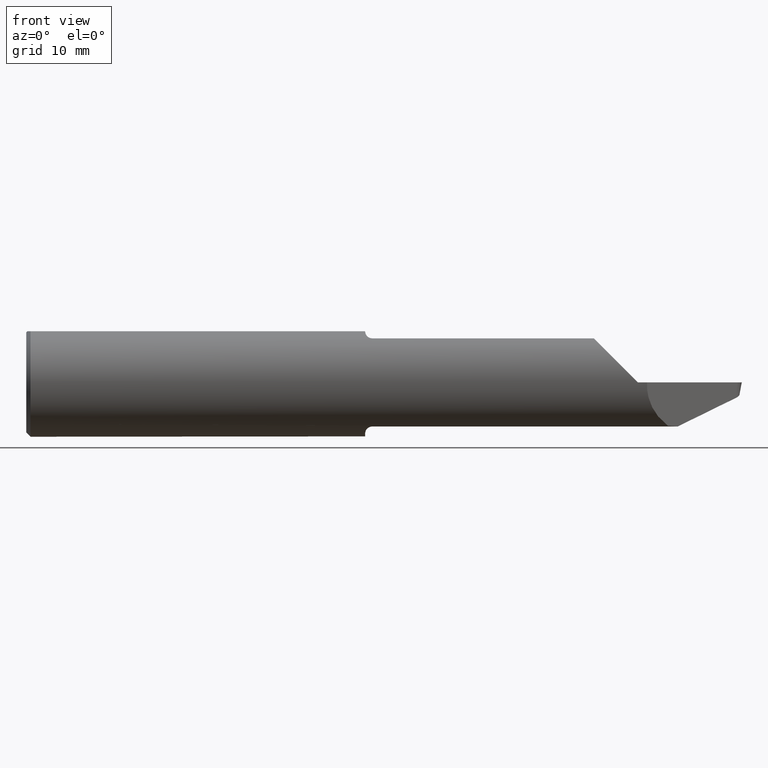
[diagram: clean part render]
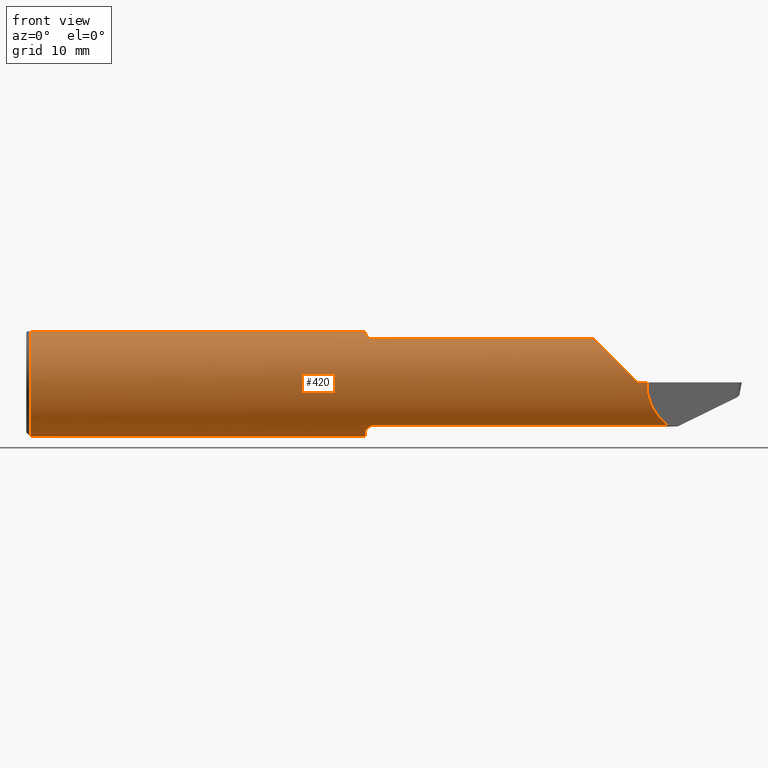
[diagram: same view with one face highlighted and labeled with its STEP entity id]
A machine part, front view. The second image highlights one B-rep face of the part: STEP entity #420.
In plain terms, the highlighted cylindrical surface (partial cylindrical patch) has radius 4.7587 mm, axis along (-1, -0, -0).
Its self-contained STEP definition (entity closure, byte-faithful):
#8 = DIRECTION ( 'NONE',  ( 0.000000000000000000, 0.000000000000000000, -1.000000000000000000 ) ) ;
#10 = AXIS2_PLACEMENT_3D ( 'NONE', #759, #772, #8 ) ;
#13 = CARTESIAN_POINT ( 'NONE',  ( 1.174689989136573631, -0.09739335834436128880, -0.1601651199371055545 ) ) ;
#15 = VERTEX_POINT ( 'NONE', #677 ) ;
#16 = EDGE_CURVE ( 'NONE', #322, #15, #734, .T. ) ;
#19 = CARTESIAN_POINT ( 'NONE',  ( 1.169000000000000039, -0.06325108694718373226, 0.1763499999999999512 ) ) ;
#23 = EDGE_LOOP ( 'NONE', ( #28, #696, #638, #691, #375, #564, #50, #592, #242, #554, #303, #196, #348, #653, #422 ) ) ;
#24 = AXIS2_PLACEMENT_3D ( 'NONE', #54, #490, #309 ) ;
#28 = ORIENTED_EDGE ( 'NONE', *, *, #600, .F. ) ;
#42 = CARTESIAN_POINT ( 'NONE',  ( 1.169680673000416116, -0.07878962450278861884, -0.1701367906434538557 ) ) ;
#50 = ORIENTED_EDGE ( 'NONE', *, *, #563, .F. ) ;
#53 = FACE_OUTER_BOUND ( 'NONE', #23, .T. ) ;
#54 = CARTESIAN_POINT ( 'NONE',  ( 0.01500000000000079568, 0.000000000000000000, 0.000000000000000000 ) ) ;
#58 = CARTESIAN_POINT ( 'NONE',  ( 0.01500000000000016251, -0.06325108694718371838, 0.1763499999999999512 ) ) ;
#60 = CIRCLE ( 'NONE', #810, 0.1873499999999999888 ) ;
#78 = LINE ( 'NONE', #332, #88 ) ;
#81 = VERTEX_POINT ( 'NONE', #182 ) ;
#82 = CARTESIAN_POINT ( 'NONE',  ( 1.193999999999999950, -0.1129504686584655859, -0.1494731217638571585 ) ) ;
#86 = CARTESIAN_POINT ( 'NONE',  ( 2.141702867418015188, -0.1873500000000000165, -1.767807840146319986E-17 ) ) ;
#88 = VECTOR ( 'NONE', #204, 39.37007874015748143 ) ;
#95 = CARTESIAN_POINT ( 'NONE',  ( 1.169000000000000039, 0.000000000000000000, 0.000000000000000000 ) ) ;
#96 = EDGE_CURVE ( 'NONE', #160, #256, #695, .T. ) ;
#122 = DIRECTION ( 'NONE',  ( 1.000000000000000000, -0.000000000000000000, -0.000000000000000000 ) ) ;
#131 = LINE ( 'NONE', #768, #670 ) ;
#134 = EDGE_CURVE ( 'NONE', #614, #268, #483, .T. ) ;
#144 = CARTESIAN_POINT ( 'NONE',  ( 1.181832178970063651, -0.1076014420774740743, -0.1533875229558556152 ) ) ;
#149 = VERTEX_POINT ( 'NONE', #497 ) ;
#150 = CARTESIAN_POINT ( 'NONE',  ( 2.213833035312448683, -0.1129504686584656831, -0.1494731217638574639 ) ) ;
#160 = VERTEX_POINT ( 'NONE', #58 ) ;
#170 = DIRECTION ( 'NONE',  ( -1.000000000000000000, -0.000000000000000000, -0.000000000000000000 ) ) ;
#172 = DIRECTION ( 'NONE',  ( -1.000000000000000000, -0.000000000000000000, -0.000000000000000000 ) ) ;
#180 = CARTESIAN_POINT ( 'NONE',  ( 1.169000000000000039, -0.06476652021089757127, -0.1757990908957477727 ) ) ;
#181 = EDGE_CURVE ( 'NONE', #623, #149, #131, .T. ) ;
#182 = CARTESIAN_POINT ( 'NONE',  ( 1.171184626225752590, -0.08534999999999996756, -0.1667794951425384531 ) ) ;
#185 = CARTESIAN_POINT ( 'NONE',  ( 1.193999999999999950, -0.1129504686584655859, -0.1494731217638571585 ) ) ;
#196 = ORIENTED_EDGE ( 'NONE', *, *, #509, .T. ) ;
#204 = DIRECTION ( 'NONE',  ( -1.000000000000000000, -0.000000000000000000, -0.000000000000000000 ) ) ;
#211 = CARTESIAN_POINT ( 'NONE',  ( 1.190394666912732768, -0.1129504686584661688, -0.1494731217638570753 ) ) ;
#213 = B_SPLINE_CURVE_WITH_KNOTS ( 'NONE', 3,
 ( #572, #578, #770, #336 ),
 .UNSPECIFIED., .F., .F.,
 ( 4, 4 ),
 ( 4.102419206629668344E-05, 0.0006141256517407879447 ),
 .UNSPECIFIED. ) ;
#228 = B_SPLINE_CURVE_WITH_KNOTS ( 'NONE', 3,
 ( #733, #42, #305, #741 ),
 .UNSPECIFIED., .F., .F.,
 ( 4, 4 ),
 ( 0.001081723733566378361, 0.001661700673542926190 ),
 .UNSPECIFIED. ) ;
#232 = CARTESIAN_POINT ( 'NONE',  ( 1.960526878236144244, -0.1129504686584656276, 0.1494731217638574639 ) ) ;
#242 = ORIENTED_EDGE ( 'NONE', *, *, #748, .T. ) ;
#244 = CARTESIAN_POINT ( 'NONE',  ( 1.172585190695228041, -0.09145938470227704675, 0.1636529957854460093 ) ) ;
#250 = EDGE_CURVE ( 'NONE', #256, #345, #60, .T. ) ;
#256 = VERTEX_POINT ( 'NONE', #566 ) ;
#268 = VERTEX_POINT ( 'NONE', #658 ) ;
#274 =( BOUNDED_CURVE ( )  B_SPLINE_CURVE ( 3, ( #507, #767, #442, #232 ),
 .UNSPECIFIED., .F., .T. ) 
 B_SPLINE_CURVE_WITH_KNOTS ( ( 4, 4 ),
 ( 4.712388980384689674, 5.636073291855361767 ),
 .UNSPECIFIED. ) 
 CURVE ( )  GEOMETRIC_REPRESENTATION_ITEM ( )  RATIONAL_B_SPLINE_CURVE ( ( 1.000000000000000000, 0.9301554373620524174, 0.9301554373620524174, 1.000000000000000000 ) ) 
 REPRESENTATION_ITEM ( '' )  );
#275 = DIRECTION ( 'NONE',  ( 1.000000000000000000, 0.000000000000000000, 0.000000000000000000 ) ) ;
#279 = CARTESIAN_POINT ( 'NONE',  ( 1.193999999999999950, -0.1129504686584657108, 0.1494731217638571308 ) ) ;
#283 = EDGE_CURVE ( 'NONE', #445, #788, #723, .T. ) ;
#291 = CARTESIAN_POINT ( 'NONE',  ( 2.138639136373742033, -0.1873500000000000720, -0.05983429283714602337 ) ) ;
#298 = CARTESIAN_POINT ( 'NONE',  ( 1.193999999999999950, -0.1129504686584657108, 0.1494731217638571308 ) ) ;
#302 = LINE ( 'NONE', #424, #823 ) ;
#303 = ORIENTED_EDGE ( 'NONE', *, *, #250, .T. ) ;
#305 = CARTESIAN_POINT ( 'NONE',  ( 1.169000000000000039, -0.07189143372580585056, -0.1731741862229593809 ) ) ;
#309 = DIRECTION ( 'NONE',  ( 0.000000000000000000, 0.000000000000000000, -1.000000000000000000 ) ) ;
#311 = CARTESIAN_POINT ( 'NONE',  ( 1.181794310168975626, -0.1075702432048001589, 0.1534098348099882103 ) ) ;
#321 = CARTESIAN_POINT ( 'NONE',  ( 0.01500000000000079568, 0.000000000000000000, 0.000000000000000000 ) ) ;
#322 = VERTEX_POINT ( 'NONE', #86 ) ;
#329 = CARTESIAN_POINT ( 'NONE',  ( 1.172586893946101716, -0.09146681443154602853, -0.1636491935950594168 ) ) ;
#332 = CARTESIAN_POINT ( 'NONE',  ( 1.744749092623466558, -0.1129504686584656831, -0.1494731217638574639 ) ) ;
#336 = CARTESIAN_POINT ( 'NONE',  ( 1.171184626225752590, -0.08534999999999996756, 0.1667794951425384253 ) ) ;
#345 = VERTEX_POINT ( 'NONE', #652 ) ;
#348 = ORIENTED_EDGE ( 'NONE', *, *, #283, .F. ) ;
#359 =( BOUNDED_CURVE ( )  B_SPLINE_CURVE ( 3, ( #150, #528, #291, #736 ),
 .UNSPECIFIED., .F., .T. ) 
 B_SPLINE_CURVE_WITH_KNOTS ( ( 4, 4 ),
 ( 5.407212885630068300, 6.330897197100739504 ),
 .UNSPECIFIED. ) 
 CURVE ( )  GEOMETRIC_REPRESENTATION_ITEM ( )  RATIONAL_B_SPLINE_CURVE ( ( 1.000000000000000000, 0.9301554373620526395, 0.9301554373620526395, 1.000000000000000000 ) ) 
 REPRESENTATION_ITEM ( '' )  );
#370 = CARTESIAN_POINT ( 'NONE',  ( 1.174708789571851764, -0.09743537618374312204, 0.1601392975941931529 ) ) ;
#375 = ORIENTED_EDGE ( 'NONE', *, *, #181, .F. ) ;
#389 = CARTESIAN_POINT ( 'NONE',  ( 1.187064668066267092, -0.1115020549876363370, -0.1505758754555963919 ) ) ;
#410 = DIRECTION ( 'NONE',  ( 0.000000000000000000, 0.000000000000000000, -1.000000000000000000 ) ) ;
#415 = CARTESIAN_POINT ( 'NONE',  ( 2.213833035312448683, -0.1129504686584656831, -0.1494731217638574639 ) ) ;
#416 = DIRECTION ( 'NONE',  ( 1.000000000000000000, 0.000000000000000000, 0.000000000000000000 ) ) ;
#420 = ADVANCED_FACE ( 'NONE', ( #53 ), #671, .T. ) ;
#422 = ORIENTED_EDGE ( 'NONE', *, *, #581, .F. ) ;
#424 = CARTESIAN_POINT ( 'NONE',  ( 2.500000000000000000, 0.06325108694718227509, 0.1763499999999999512 ) ) ;
#442 = CARTESIAN_POINT ( 'NONE',  ( 1.996600064346651049, -0.1606879575236968005, 0.1133999356533502284 ) ) ;
#445 = VERTEX_POINT ( 'NONE', #180 ) ;
#449 = EDGE_CURVE ( 'NONE', #81, #445, #228, .T. ) ;
#466 = CARTESIAN_POINT ( 'NONE',  ( 1.169000000000000039, 0.06325108694718227509, 0.1763499999999999512 ) ) ;
#469 = AXIS2_PLACEMENT_3D ( 'NONE', #95, #275, #410 ) ;
#483 = CIRCLE ( 'NONE', #10, 0.1873499999999999888 ) ;
#490 = DIRECTION ( 'NONE',  ( 1.000000000000000000, -0.000000000000000000, -0.000000000000000000 ) ) ;
#493 = CARTESIAN_POINT ( 'NONE',  ( 1.187078532975328393, -0.1115153464561647045, 0.1505664708503499927 ) ) ;
#496 = VECTOR ( 'NONE', #172, 39.37007874015748143 ) ;
#497 = CARTESIAN_POINT ( 'NONE',  ( 1.960526878236144244, -0.1129504686584656276, 0.1494731217638574639 ) ) ;
#507 = CARTESIAN_POINT ( 'NONE',  ( 2.110000000000000320, -0.1873499999999999888, -4.745349621061712245E-17 ) ) ;
#509 = EDGE_CURVE ( 'NONE', #345, #788, #302, .T. ) ;
#518 = B_SPLINE_CURVE_WITH_KNOTS ( 'NONE', 3,
 ( #185, #211, #389, #144, #639, #13, #329, #575 ),
 .UNSPECIFIED., .F., .F.,
 ( 4, 2, 2, 4 ),
 ( 1.968246507348017351E-07, 0.0002705785518796440859, 0.0005409602791085533786, 0.001081723733566378361 ),
 .UNSPECIFIED. ) ;
#528 = CARTESIAN_POINT ( 'NONE',  ( 2.164487922858646662, -0.1606879575236968560, -0.1133999356533501590 ) ) ;
#533 = EDGE_CURVE ( 'NONE', #778, #623, #580, .T. ) ;
#544 = VERTEX_POINT ( 'NONE', #82 ) ;
#547 = CARTESIAN_POINT ( 'NONE',  ( 1.171184626225752590, -0.08534999999999996756, 0.1667794951425384253 ) ) ;
#554 = ORIENTED_EDGE ( 'NONE', *, *, #96, .T. ) ;
#560 = AXIS2_PLACEMENT_3D ( 'NONE', #811, #679, #739 ) ;
#562 = DIRECTION ( 'NONE',  ( 0.000000000000000000, 0.000000000000000000, -1.000000000000000000 ) ) ;
#563 = EDGE_CURVE ( 'NONE', #268, #778, #213, .T. ) ;
#564 = ORIENTED_EDGE ( 'NONE', *, *, #533, .F. ) ;
#566 = CARTESIAN_POINT ( 'NONE',  ( 0.01500000000000079568, 0.000000000000000000, -0.1873499999999999888 ) ) ;
#572 = CARTESIAN_POINT ( 'NONE',  ( 1.169000000000000039, -0.06476652021089757127, 0.1757990908957477727 ) ) ;
#575 = CARTESIAN_POINT ( 'NONE',  ( 1.171184626225752590, -0.08534999999999996756, -0.1667794951425384531 ) ) ;
#578 = CARTESIAN_POINT ( 'NONE',  ( 1.168999999999999817, -0.07190536322760539278, 0.1731690544253190744 ) ) ;
#580 = B_SPLINE_CURVE_WITH_KNOTS ( 'NONE', 3,
 ( #547, #244, #370, #619, #311, #493, #668, #298 ),
 .UNSPECIFIED., .F., .F.,
 ( 4, 2, 2, 4 ),
 ( 0.0006141256517407879447, 0.001146034975910879003, 0.001411989637995924099, 0.001677944300080969195 ),
 .UNSPECIFIED. ) ;
#581 = EDGE_CURVE ( 'NONE', #544, #81, #518, .T. ) ;
#592 = ORIENTED_EDGE ( 'NONE', *, *, #134, .F. ) ;
#600 = EDGE_CURVE ( 'NONE', #700, #544, #78, .T. ) ;
#605 = VECTOR ( 'NONE', #170, 39.37007874015748143 ) ;
#614 = VERTEX_POINT ( 'NONE', #19 ) ;
#619 = CARTESIAN_POINT ( 'NONE',  ( 1.179809059610950062, -0.1051947344225462599, 0.1550601383860004956 ) ) ;
#623 = VERTEX_POINT ( 'NONE', #279 ) ;
#624 = EDGE_CURVE ( 'NONE', #15, #149, #274, .T. ) ;
#638 = ORIENTED_EDGE ( 'NONE', *, *, #16, .T. ) ;
#639 = CARTESIAN_POINT ( 'NONE',  ( 1.179783483830882940, -0.1051624633615449722, -0.1550820948667108734 ) ) ;
#652 = CARTESIAN_POINT ( 'NONE',  ( 0.01500000000000079568, 0.06325108694718227509, 0.1763499999999999512 ) ) ;
#653 = ORIENTED_EDGE ( 'NONE', *, *, #449, .F. ) ;
#654 = LINE ( 'NONE', #800, #496 ) ;
#658 = CARTESIAN_POINT ( 'NONE',  ( 1.169000000000000039, -0.06476652021089757127, 0.1757990908957477727 ) ) ;
#663 = EDGE_CURVE ( 'NONE', #700, #322, #359, .T. ) ;
#668 = CARTESIAN_POINT ( 'NONE',  ( 1.190386741880977484, -0.1129504686584712619, 0.1494731217638533005 ) ) ;
#670 = VECTOR ( 'NONE', #705, 39.37007874015748143 ) ;
#671 = CYLINDRICAL_SURFACE ( 'NONE', #560, 0.1873499999999999888 ) ;
#677 = CARTESIAN_POINT ( 'NONE',  ( 2.110000000000000320, -0.1873499999999999888, -4.745349621061712245E-17 ) ) ;
#679 = DIRECTION ( 'NONE',  ( -1.000000000000000000, -0.000000000000000000, -0.000000000000000000 ) ) ;
#687 = CARTESIAN_POINT ( 'NONE',  ( 2.500000000000000000, -0.1873499999999999888, -4.745349621061712245E-17 ) ) ;
#691 = ORIENTED_EDGE ( 'NONE', *, *, #624, .T. ) ;
#695 = CIRCLE ( 'NONE', #24, 0.1873499999999999888 ) ;
#696 = ORIENTED_EDGE ( 'NONE', *, *, #663, .T. ) ;
#700 = VERTEX_POINT ( 'NONE', #415 ) ;
#705 = DIRECTION ( 'NONE',  ( 1.000000000000000000, 0.000000000000000000, 0.000000000000000000 ) ) ;
#723 = CIRCLE ( 'NONE', #469, 0.1873499999999999888 ) ;
#733 = CARTESIAN_POINT ( 'NONE',  ( 1.171184626225752590, -0.08534999999999996756, -0.1667794951425384531 ) ) ;
#734 = LINE ( 'NONE', #687, #605 ) ;
#736 = CARTESIAN_POINT ( 'NONE',  ( 2.141702867418015188, -0.1873500000000000165, -1.767807840146319986E-17 ) ) ;
#737 = CARTESIAN_POINT ( 'NONE',  ( 1.171184626225752590, -0.08534999999999996756, 0.1667794951425384253 ) ) ;
#739 = DIRECTION ( 'NONE',  ( 0.000000000000000000, 0.000000000000000000, 1.000000000000000000 ) ) ;
#741 = CARTESIAN_POINT ( 'NONE',  ( 1.169000000000000039, -0.06476652021089757127, -0.1757990908957477727 ) ) ;
#748 = EDGE_CURVE ( 'NONE', #614, #160, #654, .T. ) ;
#759 = CARTESIAN_POINT ( 'NONE',  ( 1.169000000000000039, 0.000000000000000000, 0.000000000000000000 ) ) ;
#767 = CARTESIAN_POINT ( 'NONE',  ( 2.050165707162854289, -0.1873499999999999888, 0.05983429283714609970 ) ) ;
#768 = CARTESIAN_POINT ( 'NONE',  ( 1.744749092623466558, -0.1129504686584656831, 0.1494731217638574639 ) ) ;
#770 = CARTESIAN_POINT ( 'NONE',  ( 1.169675599206764227, -0.07876749217114990820, 0.1701481169429114038 ) ) ;
#772 = DIRECTION ( 'NONE',  ( 1.000000000000000000, 0.000000000000000000, 0.000000000000000000 ) ) ;
#778 = VERTEX_POINT ( 'NONE', #737 ) ;
#788 = VERTEX_POINT ( 'NONE', #466 ) ;
#800 = CARTESIAN_POINT ( 'NONE',  ( 2.500000000000000000, -0.06325108694718227509, 0.1763499999999999512 ) ) ;
#810 = AXIS2_PLACEMENT_3D ( 'NONE', #321, #122, #562 ) ;
#811 = CARTESIAN_POINT ( 'NONE',  ( 2.500000000000000000, 0.000000000000000000, 0.000000000000000000 ) ) ;
#823 = VECTOR ( 'NONE', #416, 39.37007874015748143 ) ;